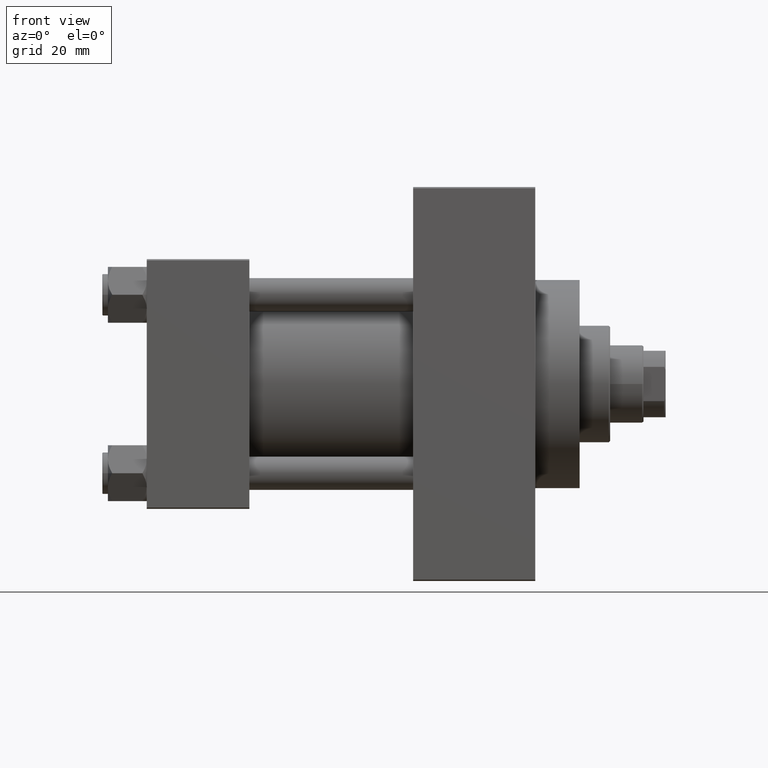
[diagram: clean part render]
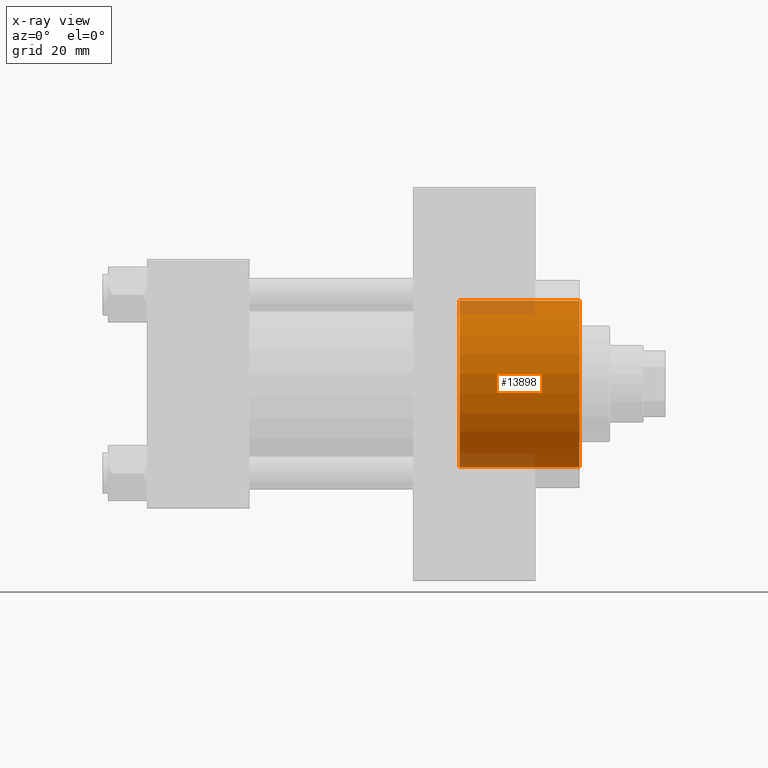
[diagram: x-ray — body ghosted, one internal face saturated and labeled with its STEP entity id]
A machine part, front view, then the same camera in x-ray: the body is ghosted and one INTERNAL B-rep face — a face not visible from any outside direction — is saturated and labeled: STEP entity #13898.
In plain terms, the highlighted cylindrical surface (partial cylindrical patch) has radius 30 mm, axis along (1, 0, 0).
Its self-contained STEP definition (entity closure, byte-faithful):
#636 = DIRECTION ( 'NONE',  ( 1.000000000000000000, 0.000000000000000000, 0.000000000000000000 ) ) ;
#2489 = VECTOR ( 'NONE', #31637, 1000.000000000000000 ) ;
#5093 = ORIENTED_EDGE ( 'NONE', *, *, #38532, .T. ) ;
#5596 = CARTESIAN_POINT ( 'NONE',  ( 112.7400000000000375, 0.000000000000000000, -30.00000000000000000 ) ) ;
#6296 = FACE_OUTER_BOUND ( 'NONE', #37322, .T. ) ;
#8966 = VECTOR ( 'NONE', #14718, 1000.000000000000000 ) ;
#9368 = DIRECTION ( 'NONE',  ( 0.000000000000000000, 0.000000000000000000, -1.000000000000000000 ) ) ;
#9949 = CARTESIAN_POINT ( 'NONE',  ( 156.0000000000000284, 3.673940397442059178E-15, 30.00000000000000000 ) ) ;
#13240 = DIRECTION ( 'NONE',  ( 0.000000000000000000, 0.000000000000000000, -1.000000000000000000 ) ) ;
#13632 = EDGE_CURVE ( 'NONE', #30390, #19217, #43609, .T. ) ;
#13898 = ADVANCED_FACE ( 'NONE', ( #6296 ), #45945, .F. ) ;
#14718 = DIRECTION ( 'NONE',  ( 1.000000000000000000, -0.000000000000000000, -0.000000000000000000 ) ) ;
#15433 = DIRECTION ( 'NONE',  ( 0.000000000000000000, 0.000000000000000000, -1.000000000000000000 ) ) ;
#17235 = AXIS2_PLACEMENT_3D ( 'NONE', #23479, #19888, #9368 ) ;
#17365 = AXIS2_PLACEMENT_3D ( 'NONE', #41908, #46422, #13240 ) ;
#19217 = VERTEX_POINT ( 'NONE', #9949 ) ;
#19888 = DIRECTION ( 'NONE',  ( 1.000000000000000000, 0.000000000000000000, 0.000000000000000000 ) ) ;
#20019 = VERTEX_POINT ( 'NONE', #36473 ) ;
#21065 = CIRCLE ( 'NONE', #17235, 30.00000000000000000 ) ;
#22647 = CARTESIAN_POINT ( 'NONE',  ( 156.0000000000000284, 0.000000000000000000, -30.00000000000000000 ) ) ;
#23455 = ORIENTED_EDGE ( 'NONE', *, *, #47176, .F. ) ;
#23479 = CARTESIAN_POINT ( 'NONE',  ( 156.0000000000000284, 0.000000000000000000, 0.000000000000000000 ) ) ;
#23761 = LINE ( 'NONE', #5596, #2489 ) ;
#30309 = AXIS2_PLACEMENT_3D ( 'NONE', #41684, #636, #15433 ) ;
#30390 = VERTEX_POINT ( 'NONE', #41023 ) ;
#31637 = DIRECTION ( 'NONE',  ( 1.000000000000000000, -0.000000000000000000, -0.000000000000000000 ) ) ;
#32236 = ORIENTED_EDGE ( 'NONE', *, *, #13632, .T. ) ;
#36473 = CARTESIAN_POINT ( 'NONE',  ( 112.7400000000000375, 0.000000000000000000, -30.00000000000000000 ) ) ;
#37145 = ORIENTED_EDGE ( 'NONE', *, *, #44681, .F. ) ;
#37322 = EDGE_LOOP ( 'NONE', ( #37145, #32236, #5093, #23455 ) ) ;
#38532 = EDGE_CURVE ( 'NONE', #19217, #45901, #21065, .T. ) ;
#41023 = CARTESIAN_POINT ( 'NONE',  ( 112.7400000000000375, 3.673940397442059178E-15, 30.00000000000000000 ) ) ;
#41684 = CARTESIAN_POINT ( 'NONE',  ( 112.7400000000000375, 0.000000000000000000, 0.000000000000000000 ) ) ;
#41908 = CARTESIAN_POINT ( 'NONE',  ( 112.7400000000000375, 0.000000000000000000, 0.000000000000000000 ) ) ;
#43609 = LINE ( 'NONE', #43850, #8966 ) ;
#43850 = CARTESIAN_POINT ( 'NONE',  ( 112.7400000000000375, 3.673940397442059178E-15, 30.00000000000000000 ) ) ;
#44681 = EDGE_CURVE ( 'NONE', #30390, #20019, #47070, .T. ) ;
#45901 = VERTEX_POINT ( 'NONE', #22647 ) ;
#45945 = CYLINDRICAL_SURFACE ( 'NONE', #17365, 30.00000000000000000 ) ;
#46422 = DIRECTION ( 'NONE',  ( 1.000000000000000000, -0.000000000000000000, -0.000000000000000000 ) ) ;
#47070 = CIRCLE ( 'NONE', #30309, 30.00000000000000000 ) ;
#47176 = EDGE_CURVE ( 'NONE', #20019, #45901, #23761, .T. ) ;